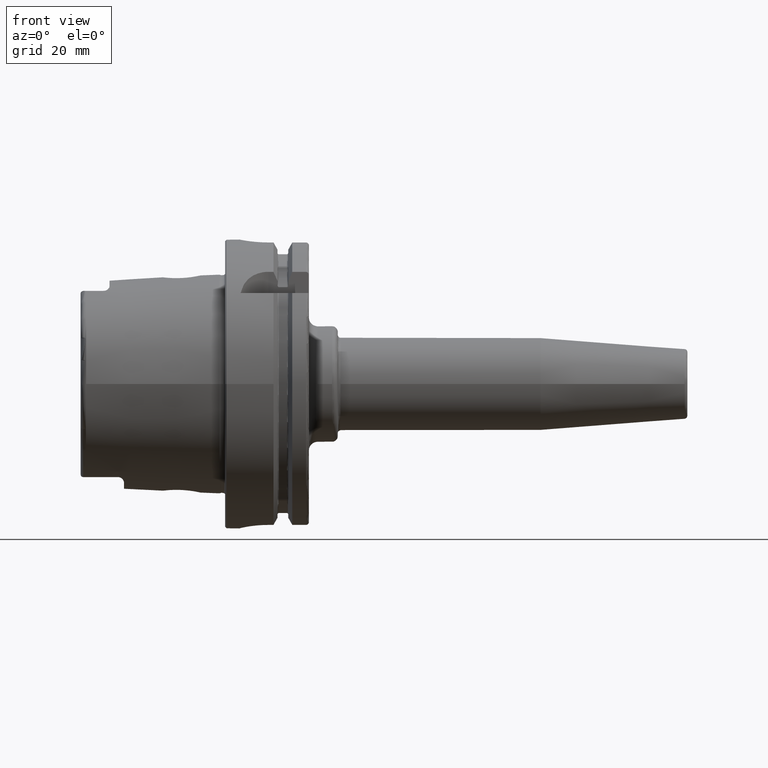
[diagram: clean part render]
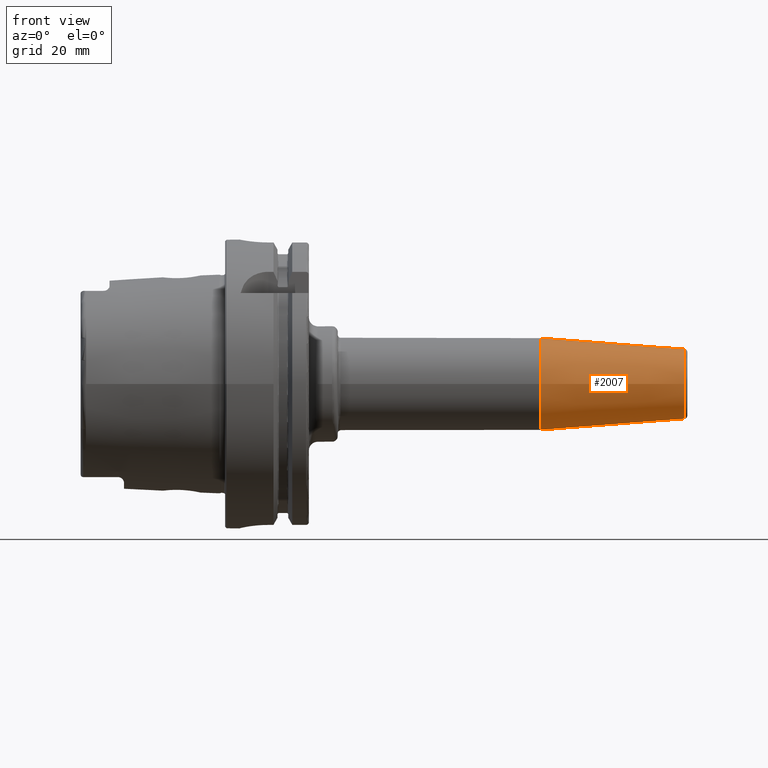
[diagram: same view with one face highlighted and labeled with its STEP entity id]
A machine part, front view. The second image highlights one B-rep face of the part: STEP entity #2007.
In plain terms, the highlighted conical surface has half-angle 4.5 deg.
Its self-contained STEP definition (entity closure, byte-faithful):
#223=FACE_OUTER_BOUND('',#346,.T.);
#346=EDGE_LOOP('',(#1396,#1397,#1398,#1399,#1400));
#482=LINE('',#3120,#588);
#588=VECTOR('',#2490,14.);
#696=CIRCLE('',#2168,16.);
#699=CIRCLE('',#2172,12.0725268420749);
#700=CIRCLE('',#2173,12.0725268420749);
#841=VERTEX_POINT('',#3108);
#843=VERTEX_POINT('',#3114);
#844=VERTEX_POINT('',#3116);
#1054=EDGE_CURVE('',#841,#841,#696,.T.);
#1058=EDGE_CURVE('',#843,#844,#699,.T.);
#1059=EDGE_CURVE('',#844,#843,#700,.T.);
#1060=EDGE_CURVE('',#844,#841,#482,.T.);
#1396=ORIENTED_EDGE('',*,*,#1059,.F.);
#1397=ORIENTED_EDGE('',*,*,#1060,.T.);
#1398=ORIENTED_EDGE('',*,*,#1054,.T.);
#1399=ORIENTED_EDGE('',*,*,#1060,.F.);
#1400=ORIENTED_EDGE('',*,*,#1058,.F.);
#1982=CONICAL_SURFACE('',#2174,14.,0.0785398163397448);
#2007=ADVANCED_FACE('',(#223),#1982,.T.);
#2168=AXIS2_PLACEMENT_3D('',#3109,#2475,#2476);
#2172=AXIS2_PLACEMENT_3D('',#3117,#2484,#2485);
#2173=AXIS2_PLACEMENT_3D('',#3118,#2486,#2487);
#2174=AXIS2_PLACEMENT_3D('',#3119,#2488,#2489);
#2475=DIRECTION('center_axis',(1.,0.,0.));
#2476=DIRECTION('ref_axis',(0.,0.,-1.));
#2484=DIRECTION('center_axis',(1.,0.,0.));
#2485=DIRECTION('ref_axis',(0.,-1.,3.06161699786838E-17));
#2486=DIRECTION('center_axis',(1.,0.,0.));
#2487=DIRECTION('ref_axis',(0.,-1.,3.06161699786838E-17));
#2488=DIRECTION('center_axis',(-1.,0.,0.));
#2489=DIRECTION('ref_axis',(0.,1.,0.));
#2490=DIRECTION('',(-0.996917333733128,-0.0784590957278449,-9.60846804471011E-18));
#3108=CARTESIAN_POINT('',(109.175181055301,-16.,-1.95943487863576E-15));
#3109=CARTESIAN_POINT('Origin',(109.175181055301,0.,0.));
#3114=CARTESIAN_POINT('',(159.078459095728,-1.47845813547676E-15,12.0725268420749));
#3116=CARTESIAN_POINT('',(159.078459095728,-12.0725268420749,-1.47845813547676E-15));
#3117=CARTESIAN_POINT('Origin',(159.078459095728,0.,-1.84807266934594E-15));
#3118=CARTESIAN_POINT('Origin',(159.078459095728,0.,-1.84807266934594E-15));
#3119=CARTESIAN_POINT('Origin',(134.587590527651,0.,0.));
#3120=CARTESIAN_POINT('',(134.587590527651,-14.,-1.71450551880629E-15));